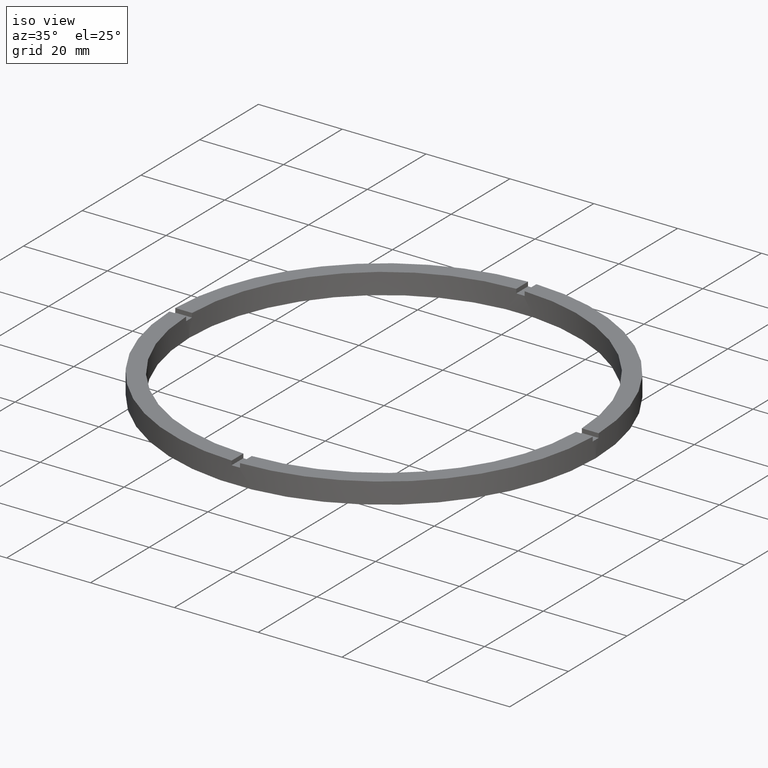
[diagram: clean part render]
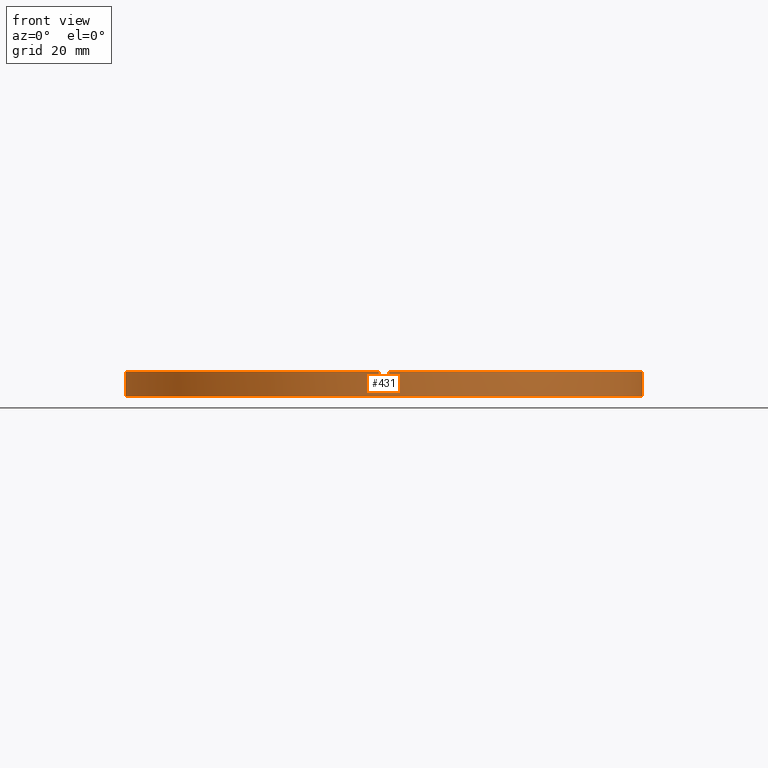
[diagram: tour spotlight — one face highlighted and labeled with its STEP entity id]
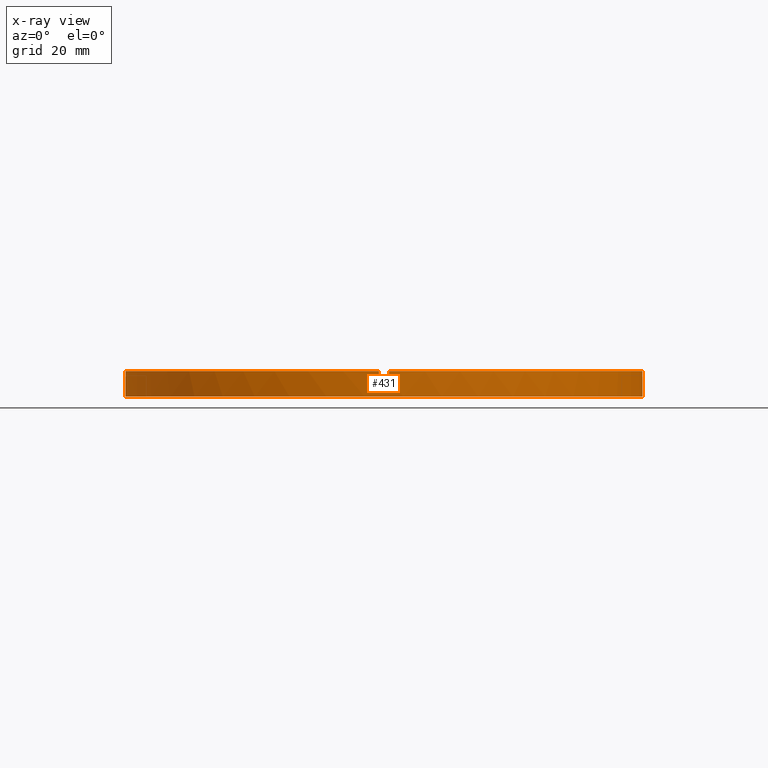
[diagram: x-ray of the same camera — body ghosted, this tour face saturated]
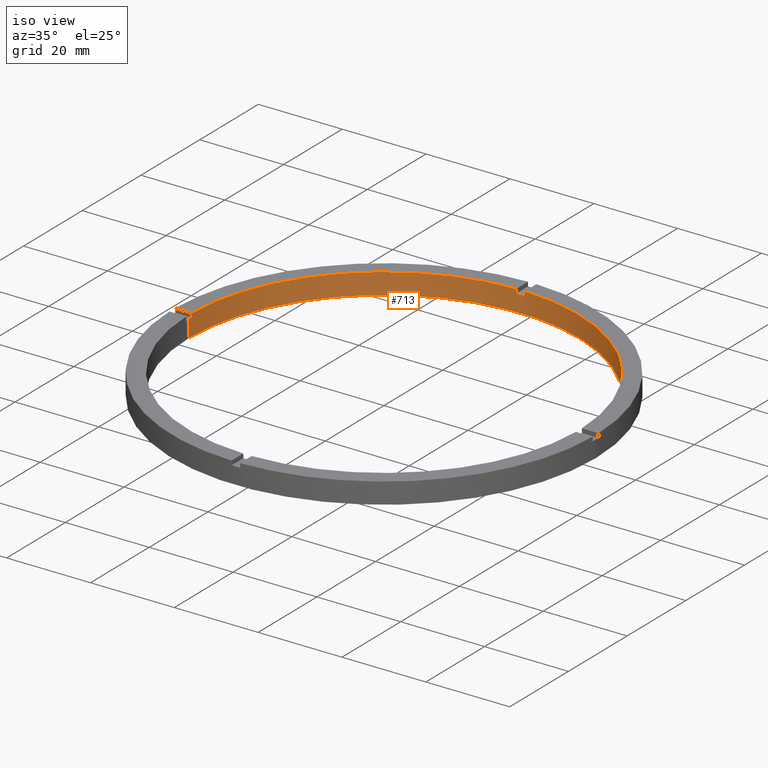
[diagram: tour spotlight — one face highlighted and labeled with its STEP entity id]
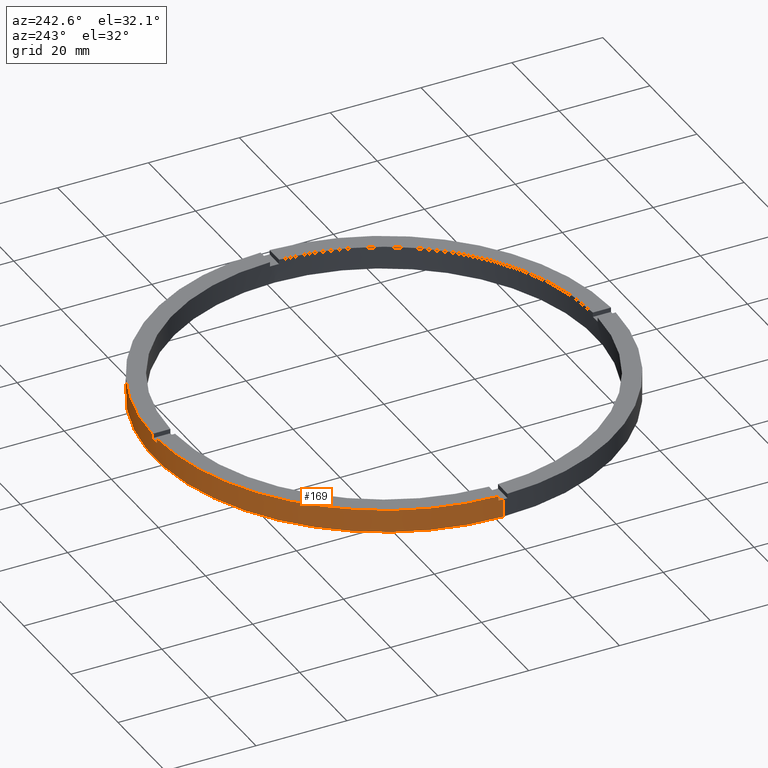
[diagram: tour spotlight — one face highlighted and labeled with its STEP entity id]
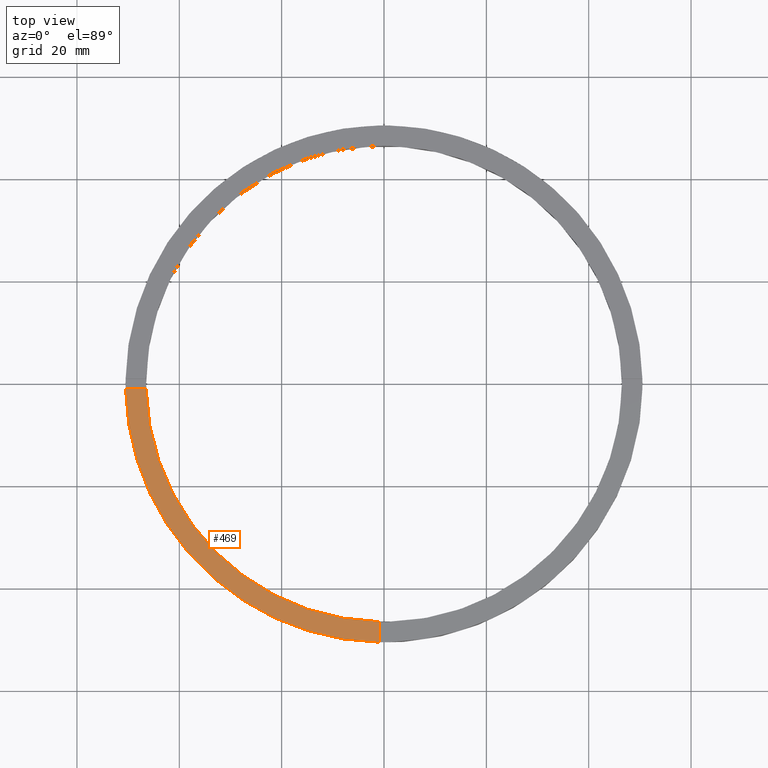
[diagram: tour spotlight — one face highlighted and labeled with its STEP entity id]
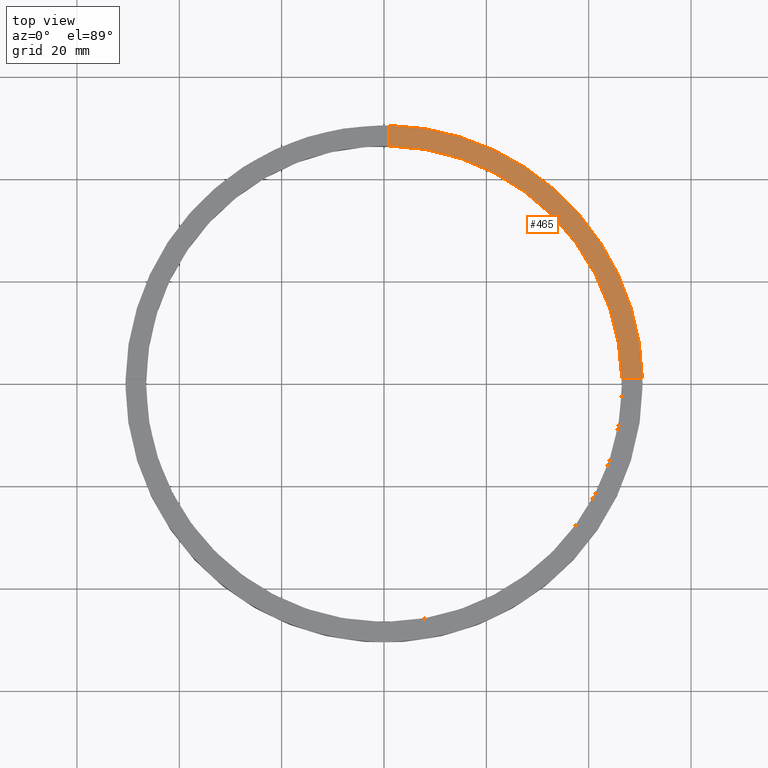
[diagram: tour spotlight — one face highlighted and labeled with its STEP entity id]
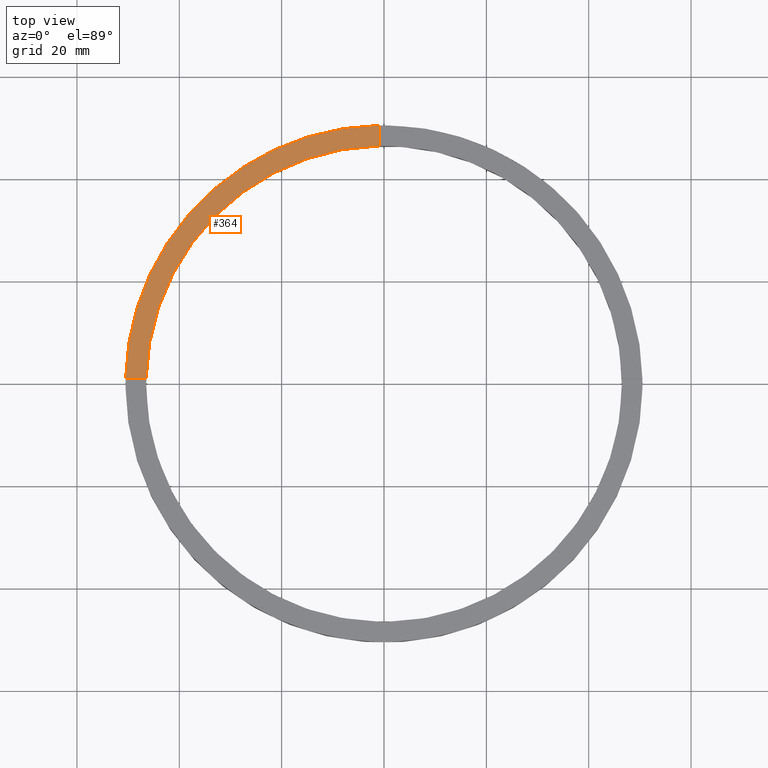
[diagram: tour spotlight — one face highlighted and labeled with its STEP entity id]
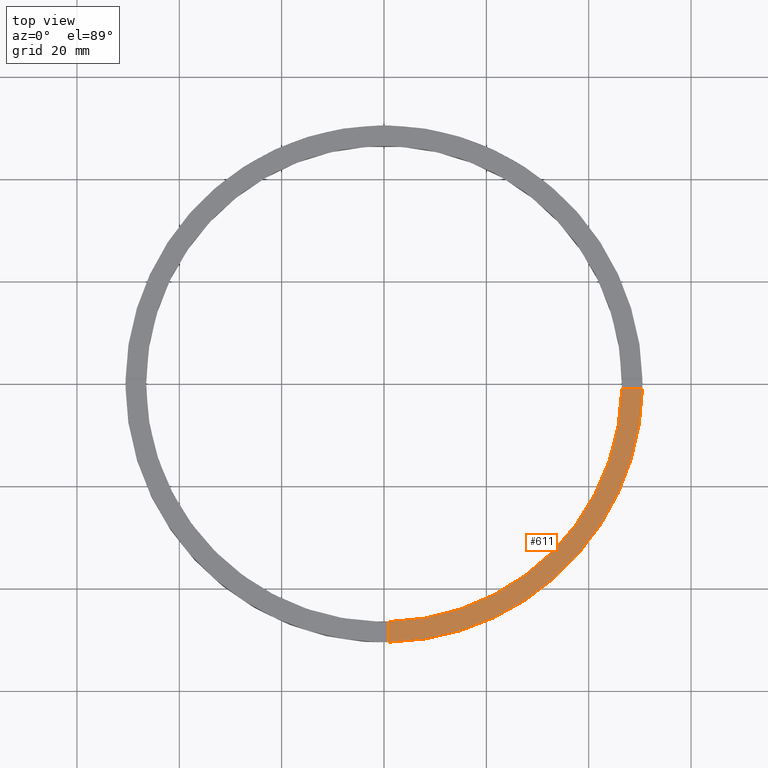
[diagram: tour spotlight — one face highlighted and labeled with its STEP entity id]
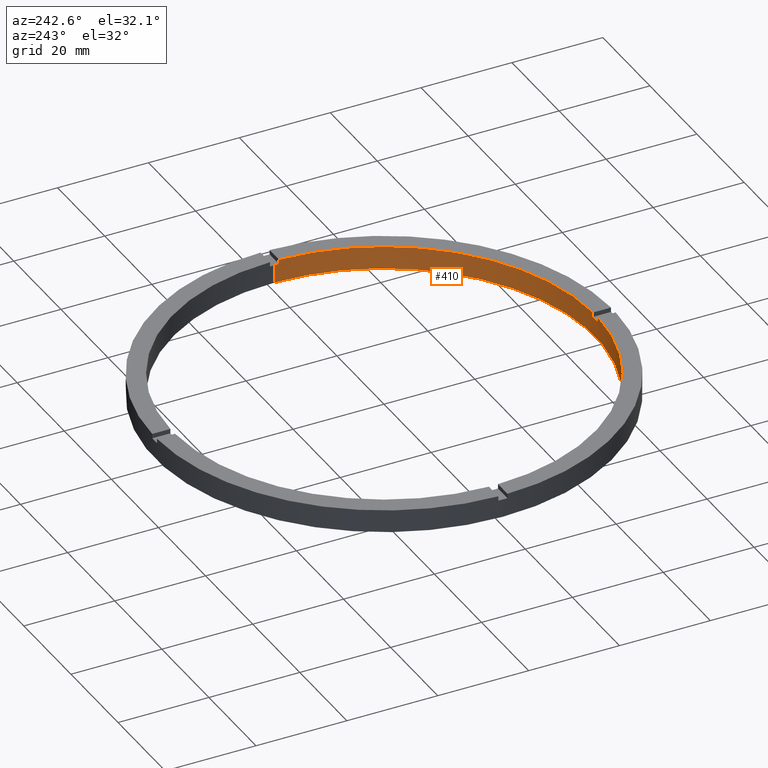
[diagram: tour spotlight — one face highlighted and labeled with its STEP entity id]
A machine part: a face-by-face anatomy tour. The part has 21 B-rep faces; the first image is the clean iso view, then the 8 largest visible faces are spotlighted one at a time (largest first), each with its STEP entity span.

Face 1 — front view, entity #431. An x-ray twin of the same camera follows (body ghosted, this face saturated) — the face is partly hidden behind the body. In plain terms, the highlighted cylindrical surface (partial cylindrical patch) has radius 50.5 mm, axis along (-0, -0, -1).
Definition (entity closure, byte-faithful):
#4 = LINE ( 'NONE', #651, #780 ) ;
#25 = DIRECTION ( 'NONE',  ( 1.000000000000000000, 0.000000000000000000, 0.000000000000000000 ) ) ;
#42 = EDGE_CURVE ( 'NONE', #171, #729, #245, .T. ) ;
#43 = EDGE_CURVE ( 'NONE', #165, #372, #262, .T. ) ;
#49 = DIRECTION ( 'NONE',  ( 0.000000000000000000, 0.000000000000000000, 1.000000000000000000 ) ) ;
#54 = CYLINDRICAL_SURFACE ( 'NONE', #470, 50.50000000000000000 ) ;
#55 = CARTESIAN_POINT ( 'NONE',  ( 50.49009803912050387, -1.000000000000154987, 5.000000000000000000 ) ) ;
#57 = DIRECTION ( 'NONE',  ( 0.000000000000000000, 0.000000000000000000, 1.000000000000000000 ) ) ;
#60 = VECTOR ( 'NONE', #481, 1000.000000000000000 ) ;
#66 = VECTOR ( 'NONE', #446, 1000.000000000000000 ) ;
#70 = ORIENTED_EDGE ( 'NONE', *, *, #707, .T. ) ;
#77 = LINE ( 'NONE', #424, #60 ) ;
#78 = ORIENTED_EDGE ( 'NONE', *, *, #475, .F. ) ;
#92 = VERTEX_POINT ( 'NONE', #608 ) ;
#105 = EDGE_CURVE ( 'NONE', #116, #403, #508, .T. ) ;
#114 = CARTESIAN_POINT ( 'NONE',  ( 50.49009803912050387, -1.000000000000154987, 4.000000000000000000 ) ) ;
#116 = VERTEX_POINT ( 'NONE', #220 ) ;
#118 = EDGE_CURVE ( 'NONE', #175, #372, #4, .T. ) ;
#125 = DIRECTION ( 'NONE',  ( -1.000000000000000000, 0.000000000000000000, 0.000000000000000000 ) ) ;
#141 = VERTEX_POINT ( 'NONE', #215 ) ;
#151 = ORIENTED_EDGE ( 'NONE', *, *, #43, .F. ) ;
#157 = CARTESIAN_POINT ( 'NONE',  ( -50.50000000000000000, 0.000000000000000000, 4.000000000000000000 ) ) ;
#165 = VERTEX_POINT ( 'NONE', #709 ) ;
#166 = DIRECTION ( 'NONE',  ( 0.000000000000000000, 0.000000000000000000, 1.000000000000000000 ) ) ;
#168 = AXIS2_PLACEMENT_3D ( 'NONE', #696, #166, #740 ) ;
#171 = VERTEX_POINT ( 'NONE', #157 ) ;
#175 = VERTEX_POINT ( 'NONE', #114 ) ;
#187 = CARTESIAN_POINT ( 'NONE',  ( 0.000000000000000000, 0.000000000000000000, 0.000000000000000000 ) ) ;
#189 = DIRECTION ( 'NONE',  ( -0.000000000000000000, -0.000000000000000000, -1.000000000000000000 ) ) ;
#201 = EDGE_CURVE ( 'NONE', #116, #141, #502, .T. ) ;
#207 = CARTESIAN_POINT ( 'NONE',  ( 0.000000000000000000, 0.000000000000000000, 4.000000000000000000 ) ) ;
#209 = EDGE_CURVE ( 'NONE', #171, #426, #772, .T. ) ;
#211 = CARTESIAN_POINT ( 'NONE',  ( -1.000000000000156541, -50.49009803912050387, 5.000000000000000000 ) ) ;
#215 = CARTESIAN_POINT ( 'NONE',  ( -1.000000000000156541, -50.49009803912050387, 5.000000000000000000 ) ) ;
#220 = CARTESIAN_POINT ( 'NONE',  ( -1.000000000000156541, -50.49009803912050387, 4.000000000000000000 ) ) ;
#224 = CARTESIAN_POINT ( 'NONE',  ( 0.000000000000000000, 0.000000000000000000, 4.000000000000000000 ) ) ;
#240 = AXIS2_PLACEMENT_3D ( 'NONE', #187, #57, #597 ) ;
#242 = DIRECTION ( 'NONE',  ( 0.000000000000000000, 0.000000000000000000, 1.000000000000000000 ) ) ;
#245 = LINE ( 'NONE', #734, #527 ) ;
#247 = AXIS2_PLACEMENT_3D ( 'NONE', #270, #49, #25 ) ;
#258 = ORIENTED_EDGE ( 'NONE', *, *, #201, .T. ) ;
#262 = CIRCLE ( 'NONE', #247, 50.50000000000000000 ) ;
#266 = DIRECTION ( 'NONE',  ( -0.000000000000000000, -0.000000000000000000, -1.000000000000000000 ) ) ;
#267 = VERTEX_POINT ( 'NONE', #382 ) ;
#270 = CARTESIAN_POINT ( 'NONE',  ( 0.000000000000000000, 0.000000000000000000, 5.000000000000000000 ) ) ;
#279 = DIRECTION ( 'NONE',  ( 1.000000000000000000, 0.000000000000000000, 0.000000000000000000 ) ) ;
#285 = CARTESIAN_POINT ( 'NONE',  ( 0.000000000000000000, 0.000000000000000000, 5.000000000000000000 ) ) ;
#302 = CARTESIAN_POINT ( 'NONE',  ( 0.9999999999998434586, -50.49009803912051098, 4.000000000000000000 ) ) ;
#315 = CIRCLE ( 'NONE', #417, 50.50000000000000000 ) ;
#318 = VECTOR ( 'NONE', #756, 1000.000000000000000 ) ;
#323 = DIRECTION ( 'NONE',  ( 1.000000000000000000, 0.000000000000000000, 0.000000000000000000 ) ) ;
#327 = ORIENTED_EDGE ( 'NONE', *, *, #118, .T. ) ;
#340 = LINE ( 'NONE', #384, #66 ) ;
#343 = EDGE_CURVE ( 'NONE', #466, #141, #782, .T. ) ;
#354 = DIRECTION ( 'NONE',  ( -0.000000000000000000, 0.000000000000000000, 1.000000000000000000 ) ) ;
#356 = ORIENTED_EDGE ( 'NONE', *, *, #42, .T. ) ;
#367 = ORIENTED_EDGE ( 'NONE', *, *, #209, .F. ) ;
#372 = VERTEX_POINT ( 'NONE', #55 ) ;
#374 = ORIENTED_EDGE ( 'NONE', *, *, #538, .T. ) ;
#382 = CARTESIAN_POINT ( 'NONE',  ( 50.50000000000000000, 6.184466335694133659E-15, 0.000000000000000000 ) ) ;
#384 = CARTESIAN_POINT ( 'NONE',  ( 50.50000000000000000, 6.184466335694133659E-15, 5.000000000000000000 ) ) ;
#402 = CARTESIAN_POINT ( 'NONE',  ( 0.000000000000000000, 0.000000000000000000, 5.000000000000000000 ) ) ;
#403 = VERTEX_POINT ( 'NONE', #302 ) ;
#404 = ORIENTED_EDGE ( 'NONE', *, *, #706, .T. ) ;
#411 = ORIENTED_EDGE ( 'NONE', *, *, #708, .F. ) ;
#417 = AXIS2_PLACEMENT_3D ( 'NONE', #207, #647, #697 ) ;
#423 = DIRECTION ( 'NONE',  ( 0.000000000000000000, 0.000000000000000000, 1.000000000000000000 ) ) ;
#424 = CARTESIAN_POINT ( 'NONE',  ( 0.9999999999998434586, -50.49009803912051098, 5.000000000000000000 ) ) ;
#426 = VERTEX_POINT ( 'NONE', #542 ) ;
#429 = ORIENTED_EDGE ( 'NONE', *, *, #105, .F. ) ;
#431 = ADVANCED_FACE ( 'NONE', ( #575 ), #54, .T. ) ;
#446 = DIRECTION ( 'NONE',  ( -0.000000000000000000, -0.000000000000000000, -1.000000000000000000 ) ) ;
#466 = VERTEX_POINT ( 'NONE', #753 ) ;
#470 = AXIS2_PLACEMENT_3D ( 'NONE', #285, #189, #125 ) ;
#475 = EDGE_CURVE ( 'NONE', #175, #92, #315, .T. ) ;
#481 = DIRECTION ( 'NONE',  ( -0.000000000000000000, -0.000000000000000000, -1.000000000000000000 ) ) ;
#502 = LINE ( 'NONE', #211, #776 ) ;
#508 = CIRCLE ( 'NONE', #733, 50.50000000000000000 ) ;
#520 = CARTESIAN_POINT ( 'NONE',  ( -50.49009803912050387, -1.000000000000031752, 5.000000000000000000 ) ) ;
#527 = VECTOR ( 'NONE', #266, 1000.000000000000000 ) ;
#538 = EDGE_CURVE ( 'NONE', #729, #267, #548, .T. ) ;
#542 = CARTESIAN_POINT ( 'NONE',  ( -50.49009803912050387, -1.000000000000031752, 4.000000000000000000 ) ) ;
#548 = CIRCLE ( 'NONE', #240, 50.50000000000000000 ) ;
#575 = FACE_OUTER_BOUND ( 'NONE', #703, .T. ) ;
#597 = DIRECTION ( 'NONE',  ( 1.000000000000000000, 0.000000000000000000, 0.000000000000000000 ) ) ;
#606 = LINE ( 'NONE', #520, #318 ) ;
#608 = CARTESIAN_POINT ( 'NONE',  ( 50.50000000000000000, 6.184466335694133659E-15, 4.000000000000000000 ) ) ;
#614 = ORIENTED_EDGE ( 'NONE', *, *, #343, .F. ) ;
#647 = DIRECTION ( 'NONE',  ( 0.000000000000000000, 0.000000000000000000, 1.000000000000000000 ) ) ;
#649 = DIRECTION ( 'NONE',  ( 0.000000000000000000, 0.000000000000000000, 1.000000000000000000 ) ) ;
#651 = CARTESIAN_POINT ( 'NONE',  ( 50.49009803912050387, -1.000000000000154987, 5.000000000000000000 ) ) ;
#696 = CARTESIAN_POINT ( 'NONE',  ( 0.000000000000000000, 0.000000000000000000, 4.000000000000000000 ) ) ;
#697 = DIRECTION ( 'NONE',  ( 1.000000000000000000, 0.000000000000000000, 0.000000000000000000 ) ) ;
#703 = EDGE_LOOP ( 'NONE', ( #411, #78, #327, #151, #70, #429, #258, #614, #404, #367, #356, #374 ) ) ;
#706 = EDGE_CURVE ( 'NONE', #466, #426, #606, .T. ) ;
#707 = EDGE_CURVE ( 'NONE', #165, #403, #77, .T. ) ;
#708 = EDGE_CURVE ( 'NONE', #92, #267, #340, .T. ) ;
#709 = CARTESIAN_POINT ( 'NONE',  ( 0.9999999999998434586, -50.49009803912051098, 5.000000000000000000 ) ) ;
#729 = VERTEX_POINT ( 'NONE', #771 ) ;
#733 = AXIS2_PLACEMENT_3D ( 'NONE', #224, #354, #279 ) ;
#734 = CARTESIAN_POINT ( 'NONE',  ( -50.50000000000000000, 0.000000000000000000, 5.000000000000000000 ) ) ;
#740 = DIRECTION ( 'NONE',  ( 1.000000000000000000, 0.000000000000000000, 0.000000000000000000 ) ) ;
#745 = AXIS2_PLACEMENT_3D ( 'NONE', #402, #242, #323 ) ;
#753 = CARTESIAN_POINT ( 'NONE',  ( -50.49009803912050387, -1.000000000000031752, 5.000000000000000000 ) ) ;
#756 = DIRECTION ( 'NONE',  ( -0.000000000000000000, -0.000000000000000000, -1.000000000000000000 ) ) ;
#771 = CARTESIAN_POINT ( 'NONE',  ( -50.50000000000000000, 0.000000000000000000, 0.000000000000000000 ) ) ;
#772 = CIRCLE ( 'NONE', #168, 50.50000000000000000 ) ;
#776 = VECTOR ( 'NONE', #649, 1000.000000000000000 ) ;
#780 = VECTOR ( 'NONE', #423, 1000.000000000000000 ) ;
#782 = CIRCLE ( 'NONE', #745, 50.50000000000000000 ) ;

Face 2 — iso view, entity #713. In plain terms, the highlighted cylindrical surface (partial cylindrical patch) has radius 46.5 mm, axis along (-0, -0, -1).
Definition (entity closure, byte-faithful):
#2 = CARTESIAN_POINT ( 'NONE',  ( 0.000000000000000000, 0.000000000000000000, 5.000000000000000000 ) ) ;
#10 = CARTESIAN_POINT ( 'NONE',  ( -46.48924606831132422, 0.9999999999999690248, 4.000000000000000000 ) ) ;
#19 = LINE ( 'NONE', #37, #286 ) ;
#24 = VECTOR ( 'NONE', #93, 1000.000000000000000 ) ;
#29 = LINE ( 'NONE', #674, #56 ) ;
#36 = DIRECTION ( 'NONE',  ( 0.000000000000000000, 0.000000000000000000, 1.000000000000000000 ) ) ;
#37 = CARTESIAN_POINT ( 'NONE',  ( 46.48924606831132422, 0.9999999999998447908, 5.000000000000000000 ) ) ;
#50 = CARTESIAN_POINT ( 'NONE',  ( -46.50000000000000000, 0.000000000000000000, 4.000000000000000000 ) ) ;
#51 = CIRCLE ( 'NONE', #98, 46.50000000000000000 ) ;
#56 = VECTOR ( 'NONE', #624, 1000.000000000000000 ) ;
#64 = FACE_OUTER_BOUND ( 'NONE', #590, .T. ) ;
#71 = DIRECTION ( 'NONE',  ( 0.000000000000000000, 0.000000000000000000, 1.000000000000000000 ) ) ;
#87 = AXIS2_PLACEMENT_3D ( 'NONE', #486, #71, #308 ) ;
#93 = DIRECTION ( 'NONE',  ( -0.000000000000000000, -0.000000000000000000, -1.000000000000000000 ) ) ;
#98 = AXIS2_PLACEMENT_3D ( 'NONE', #2, #726, #457 ) ;
#106 = VERTEX_POINT ( 'NONE', #594 ) ;
#107 = ORIENTED_EDGE ( 'NONE', *, *, #250, .F. ) ;
#110 = EDGE_CURVE ( 'NONE', #158, #690, #516, .T. ) ;
#111 = ORIENTED_EDGE ( 'NONE', *, *, #595, .F. ) ;
#122 = CARTESIAN_POINT ( 'NONE',  ( 46.50000000000000000, 5.694607616035192278E-15, 0.000000000000000000 ) ) ;
#128 = CARTESIAN_POINT ( 'NONE',  ( 0.000000000000000000, 0.000000000000000000, 4.000000000000000000 ) ) ;
#134 = EDGE_CURVE ( 'NONE', #158, #623, #777, .T. ) ;
#139 = VERTEX_POINT ( 'NONE', #711 ) ;
#145 = DIRECTION ( 'NONE',  ( 0.000000000000000000, 0.000000000000000000, 1.000000000000000000 ) ) ;
#148 = ORIENTED_EDGE ( 'NONE', *, *, #497, .T. ) ;
#149 = ORIENTED_EDGE ( 'NONE', *, *, #482, .F. ) ;
#158 = VERTEX_POINT ( 'NONE', #714 ) ;
#183 = DIRECTION ( 'NONE',  ( 1.000000000000000000, 0.000000000000000000, 0.000000000000000000 ) ) ;
#186 = CARTESIAN_POINT ( 'NONE',  ( 0.000000000000000000, 0.000000000000000000, 4.000000000000000000 ) ) ;
#193 = DIRECTION ( 'NONE',  ( 1.000000000000000000, 0.000000000000000000, 0.000000000000000000 ) ) ;
#205 = CARTESIAN_POINT ( 'NONE',  ( -1.000000000000026867, 46.48924606831132422, 5.000000000000000000 ) ) ;
#225 = DIRECTION ( 'NONE',  ( 1.000000000000000000, 0.000000000000000000, 0.000000000000000000 ) ) ;
#237 = CARTESIAN_POINT ( 'NONE',  ( 0.9999999999999731326, 46.48924606831132422, 4.000000000000000000 ) ) ;
#239 = AXIS2_PLACEMENT_3D ( 'NONE', #584, #36, #718 ) ;
#250 = EDGE_CURVE ( 'NONE', #623, #405, #255, .T. ) ;
#255 = CIRCLE ( 'NONE', #528, 46.50000000000000000 ) ;
#260 = VERTEX_POINT ( 'NONE', #237 ) ;
#277 = EDGE_CURVE ( 'NONE', #260, #668, #762, .T. ) ;
#286 = VECTOR ( 'NONE', #719, 1000.000000000000000 ) ;
#289 = CARTESIAN_POINT ( 'NONE',  ( 0.000000000000000000, 0.000000000000000000, 0.000000000000000000 ) ) ;
#290 = CIRCLE ( 'NONE', #699, 46.50000000000000000 ) ;
#292 = CIRCLE ( 'NONE', #328, 46.50000000000000000 ) ;
#308 = DIRECTION ( 'NONE',  ( 1.000000000000000000, 0.000000000000000000, 0.000000000000000000 ) ) ;
#319 = CARTESIAN_POINT ( 'NONE',  ( -46.50000000000000000, 0.000000000000000000, 5.000000000000000000 ) ) ;
#322 = CIRCLE ( 'NONE', #87, 46.50000000000000000 ) ;
#328 = AXIS2_PLACEMENT_3D ( 'NONE', #128, #381, #225 ) ;
#332 = ORIENTED_EDGE ( 'NONE', *, *, #474, .T. ) ;
#334 = AXIS2_PLACEMENT_3D ( 'NONE', #484, #536, #630 ) ;
#336 = VERTEX_POINT ( 'NONE', #10 ) ;
#361 = CARTESIAN_POINT ( 'NONE',  ( 46.48924606831132422, 0.9999999999998447908, 4.000000000000000000 ) ) ;
#363 = EDGE_CURVE ( 'NONE', #260, #660, #290, .T. ) ;
#370 = ORIENTED_EDGE ( 'NONE', *, *, #663, .F. ) ;
#375 = CARTESIAN_POINT ( 'NONE',  ( 46.50000000000000000, 5.694607616035192278E-15, 5.000000000000000000 ) ) ;
#376 = CARTESIAN_POINT ( 'NONE',  ( 0.9999999999999731326, 46.48924606831132422, 5.000000000000000000 ) ) ;
#379 = ORIENTED_EDGE ( 'NONE', *, *, #363, .T. ) ;
#381 = DIRECTION ( 'NONE',  ( 0.000000000000000000, 0.000000000000000000, 1.000000000000000000 ) ) ;
#405 = VERTEX_POINT ( 'NONE', #526 ) ;
#439 = CARTESIAN_POINT ( 'NONE',  ( -1.000000000000026867, 46.48924606831132422, 5.000000000000000000 ) ) ;
#457 = DIRECTION ( 'NONE',  ( 1.000000000000000000, 0.000000000000000000, 0.000000000000000000 ) ) ;
#473 = CARTESIAN_POINT ( 'NONE',  ( -1.000000000000026867, 46.48924606831132422, 4.000000000000000000 ) ) ;
#474 = EDGE_CURVE ( 'NONE', #675, #405, #562, .T. ) ;
#482 = EDGE_CURVE ( 'NONE', #619, #660, #564, .T. ) ;
#484 = CARTESIAN_POINT ( 'NONE',  ( 0.000000000000000000, 0.000000000000000000, 5.000000000000000000 ) ) ;
#486 = CARTESIAN_POINT ( 'NONE',  ( 0.000000000000000000, 0.000000000000000000, 5.000000000000000000 ) ) ;
#487 = DIRECTION ( 'NONE',  ( 0.000000000000000000, -0.000000000000000000, 1.000000000000000000 ) ) ;
#493 = DIRECTION ( 'NONE',  ( 0.000000000000000000, 0.000000000000000000, 1.000000000000000000 ) ) ;
#497 = EDGE_CURVE ( 'NONE', #139, #668, #51, .T. ) ;
#506 = VECTOR ( 'NONE', #493, 1000.000000000000000 ) ;
#511 = VECTOR ( 'NONE', #754, 1000.000000000000000 ) ;
#516 = CIRCLE ( 'NONE', #239, 46.50000000000000000 ) ;
#525 = CARTESIAN_POINT ( 'NONE',  ( 0.9999999999999731326, 46.48924606831132422, 5.000000000000000000 ) ) ;
#526 = CARTESIAN_POINT ( 'NONE',  ( -46.50000000000000000, 0.000000000000000000, 0.000000000000000000 ) ) ;
#528 = AXIS2_PLACEMENT_3D ( 'NONE', #289, #145, #193 ) ;
#536 = DIRECTION ( 'NONE',  ( -0.000000000000000000, -0.000000000000000000, -1.000000000000000000 ) ) ;
#547 = VECTOR ( 'NONE', #742, 1000.000000000000000 ) ;
#562 = LINE ( 'NONE', #319, #24 ) ;
#564 = LINE ( 'NONE', #205, #547 ) ;
#579 = CYLINDRICAL_SURFACE ( 'NONE', #334, 46.50000000000000000 ) ;
#584 = CARTESIAN_POINT ( 'NONE',  ( 0.000000000000000000, 0.000000000000000000, 4.000000000000000000 ) ) ;
#590 = EDGE_LOOP ( 'NONE', ( #637, #616, #111, #148, #676, #379, #149, #596, #370, #628, #332, #107 ) ) ;
#594 = CARTESIAN_POINT ( 'NONE',  ( -46.48924606831132422, 0.9999999999999690248, 5.000000000000000000 ) ) ;
#595 = EDGE_CURVE ( 'NONE', #139, #690, #19, .T. ) ;
#596 = ORIENTED_EDGE ( 'NONE', *, *, #744, .T. ) ;
#616 = ORIENTED_EDGE ( 'NONE', *, *, #110, .T. ) ;
#619 = VERTEX_POINT ( 'NONE', #439 ) ;
#623 = VERTEX_POINT ( 'NONE', #122 ) ;
#624 = DIRECTION ( 'NONE',  ( 0.000000000000000000, 0.000000000000000000, 1.000000000000000000 ) ) ;
#628 = ORIENTED_EDGE ( 'NONE', *, *, #666, .T. ) ;
#630 = DIRECTION ( 'NONE',  ( -1.000000000000000000, 0.000000000000000000, 0.000000000000000000 ) ) ;
#637 = ORIENTED_EDGE ( 'NONE', *, *, #134, .F. ) ;
#660 = VERTEX_POINT ( 'NONE', #473 ) ;
#663 = EDGE_CURVE ( 'NONE', #336, #106, #29, .T. ) ;
#666 = EDGE_CURVE ( 'NONE', #336, #675, #292, .T. ) ;
#668 = VERTEX_POINT ( 'NONE', #376 ) ;
#674 = CARTESIAN_POINT ( 'NONE',  ( -46.48924606831132422, 0.9999999999999690248, 5.000000000000000000 ) ) ;
#675 = VERTEX_POINT ( 'NONE', #50 ) ;
#676 = ORIENTED_EDGE ( 'NONE', *, *, #277, .F. ) ;
#690 = VERTEX_POINT ( 'NONE', #361 ) ;
#699 = AXIS2_PLACEMENT_3D ( 'NONE', #186, #487, #183 ) ;
#711 = CARTESIAN_POINT ( 'NONE',  ( 46.48924606831132422, 0.9999999999998447908, 5.000000000000000000 ) ) ;
#713 = ADVANCED_FACE ( 'NONE', ( #64 ), #579, .F. ) ;
#714 = CARTESIAN_POINT ( 'NONE',  ( 46.50000000000000000, 5.694607616035192278E-15, 4.000000000000000000 ) ) ;
#718 = DIRECTION ( 'NONE',  ( 1.000000000000000000, 0.000000000000000000, 0.000000000000000000 ) ) ;
#719 = DIRECTION ( 'NONE',  ( -0.000000000000000000, -0.000000000000000000, -1.000000000000000000 ) ) ;
#726 = DIRECTION ( 'NONE',  ( 0.000000000000000000, 0.000000000000000000, 1.000000000000000000 ) ) ;
#742 = DIRECTION ( 'NONE',  ( -0.000000000000000000, -0.000000000000000000, -1.000000000000000000 ) ) ;
#744 = EDGE_CURVE ( 'NONE', #619, #106, #322, .T. ) ;
#754 = DIRECTION ( 'NONE',  ( -0.000000000000000000, -0.000000000000000000, -1.000000000000000000 ) ) ;
#762 = LINE ( 'NONE', #525, #506 ) ;
#777 = LINE ( 'NONE', #375, #511 ) ;

Face 3 — auxiliary view, entity #169. In plain terms, the highlighted cylindrical surface (partial cylindrical patch) has radius 50.5 mm, axis along (-0, -0, -1).
Definition (entity closure, byte-faithful):
#8 = ORIENTED_EDGE ( 'NONE', *, *, #428, .T. ) ;
#16 = LINE ( 'NONE', #444, #545 ) ;
#18 = CARTESIAN_POINT ( 'NONE',  ( 0.000000000000000000, 0.000000000000000000, 4.000000000000000000 ) ) ;
#22 = LINE ( 'NONE', #243, #274 ) ;
#38 = VECTOR ( 'NONE', #458, 1000.000000000000000 ) ;
#42 = EDGE_CURVE ( 'NONE', #171, #729, #245, .T. ) ;
#63 = DIRECTION ( 'NONE',  ( 1.000000000000000000, 0.000000000000000000, 0.000000000000000000 ) ) ;
#66 = VECTOR ( 'NONE', #446, 1000.000000000000000 ) ;
#67 = EDGE_CURVE ( 'NONE', #146, #170, #519, .T. ) ;
#68 = VECTOR ( 'NONE', #735, 1000.000000000000000 ) ;
#73 = DIRECTION ( 'NONE',  ( 0.000000000000000000, 0.000000000000000000, 1.000000000000000000 ) ) ;
#80 = ORIENTED_EDGE ( 'NONE', *, *, #393, .F. ) ;
#83 = ORIENTED_EDGE ( 'NONE', *, *, #427, .F. ) ;
#88 = ORIENTED_EDGE ( 'NONE', *, *, #173, .F. ) ;
#92 = VERTEX_POINT ( 'NONE', #608 ) ;
#96 = DIRECTION ( 'NONE',  ( 0.000000000000000000, 0.000000000000000000, 1.000000000000000000 ) ) ;
#109 = ORIENTED_EDGE ( 'NONE', *, *, #391, .T. ) ;
#133 = CARTESIAN_POINT ( 'NONE',  ( 0.9999999999999731326, 50.49009803912050387, 5.000000000000000000 ) ) ;
#135 = ORIENTED_EDGE ( 'NONE', *, *, #708, .T. ) ;
#146 = VERTEX_POINT ( 'NONE', #368 ) ;
#147 = DIRECTION ( 'NONE',  ( 1.000000000000000000, 0.000000000000000000, 0.000000000000000000 ) ) ;
#150 = CARTESIAN_POINT ( 'NONE',  ( -50.49009803912050387, 0.9999999999999683586, 5.000000000000000000 ) ) ;
#153 = DIRECTION ( 'NONE',  ( -0.000000000000000000, -0.000000000000000000, -1.000000000000000000 ) ) ;
#157 = CARTESIAN_POINT ( 'NONE',  ( -50.50000000000000000, 0.000000000000000000, 4.000000000000000000 ) ) ;
#167 = AXIS2_PLACEMENT_3D ( 'NONE', #500, #432, #512 ) ;
#169 = ADVANCED_FACE ( 'NONE', ( #251 ), #533, .T. ) ;
#170 = VERTEX_POINT ( 'NONE', #150 ) ;
#171 = VERTEX_POINT ( 'NONE', #157 ) ;
#173 = EDGE_CURVE ( 'NONE', #653, #171, #537, .T. ) ;
#180 = CARTESIAN_POINT ( 'NONE',  ( 50.49009803912051098, 0.9999999999998450129, 4.000000000000000000 ) ) ;
#199 = AXIS2_PLACEMENT_3D ( 'NONE', #678, #73, #147 ) ;
#208 = VERTEX_POINT ( 'NONE', #212 ) ;
#212 = CARTESIAN_POINT ( 'NONE',  ( 50.49009803912051098, 0.9999999999998450129, 5.000000000000000000 ) ) ;
#216 = CARTESIAN_POINT ( 'NONE',  ( 0.000000000000000000, 0.000000000000000000, 5.000000000000000000 ) ) ;
#221 = CARTESIAN_POINT ( 'NONE',  ( 0.9999999999999731326, 50.49009803912050387, 4.000000000000000000 ) ) ;
#241 = DIRECTION ( 'NONE',  ( 1.000000000000000000, 0.000000000000000000, 0.000000000000000000 ) ) ;
#243 = CARTESIAN_POINT ( 'NONE',  ( -1.000000000000026867, 50.49009803912050387, 5.000000000000000000 ) ) ;
#245 = LINE ( 'NONE', #734, #527 ) ;
#251 = FACE_OUTER_BOUND ( 'NONE', #442, .T. ) ;
#263 = DIRECTION ( 'NONE',  ( 0.000000000000000000, 0.000000000000000000, 1.000000000000000000 ) ) ;
#265 = ORIENTED_EDGE ( 'NONE', *, *, #67, .F. ) ;
#266 = DIRECTION ( 'NONE',  ( -0.000000000000000000, -0.000000000000000000, -1.000000000000000000 ) ) ;
#267 = VERTEX_POINT ( 'NONE', #382 ) ;
#274 = VECTOR ( 'NONE', #153, 1000.000000000000000 ) ;
#275 = CIRCLE ( 'NONE', #723, 50.50000000000000000 ) ;
#282 = AXIS2_PLACEMENT_3D ( 'NONE', #18, #96, #241 ) ;
#284 = LINE ( 'NONE', #396, #38 ) ;
#310 = DIRECTION ( 'NONE',  ( 0.000000000000000000, 0.000000000000000000, 1.000000000000000000 ) ) ;
#324 = CIRCLE ( 'NONE', #572, 50.50000000000000000 ) ;
#340 = LINE ( 'NONE', #384, #66 ) ;
#358 = DIRECTION ( 'NONE',  ( 1.000000000000000000, 0.000000000000000000, 0.000000000000000000 ) ) ;
#368 = CARTESIAN_POINT ( 'NONE',  ( -1.000000000000026867, 50.49009803912050387, 5.000000000000000000 ) ) ;
#382 = CARTESIAN_POINT ( 'NONE',  ( 50.50000000000000000, 6.184466335694133659E-15, 0.000000000000000000 ) ) ;
#383 = CARTESIAN_POINT ( 'NONE',  ( -1.000000000000026867, 50.49009803912050387, 4.000000000000000000 ) ) ;
#384 = CARTESIAN_POINT ( 'NONE',  ( 50.50000000000000000, 6.184466335694133659E-15, 5.000000000000000000 ) ) ;
#391 = EDGE_CURVE ( 'NONE', #653, #170, #16, .T. ) ;
#392 = CARTESIAN_POINT ( 'NONE',  ( 50.49009803912051098, 0.9999999999998450129, 5.000000000000000000 ) ) ;
#393 = EDGE_CURVE ( 'NONE', #208, #642, #574, .T. ) ;
#394 = DIRECTION ( 'NONE',  ( 1.000000000000000000, 0.000000000000000000, 0.000000000000000000 ) ) ;
#396 = CARTESIAN_POINT ( 'NONE',  ( 0.9999999999999731326, 50.49009803912050387, 5.000000000000000000 ) ) ;
#418 = VERTEX_POINT ( 'NONE', #383 ) ;
#422 = ORIENTED_EDGE ( 'NONE', *, *, #746, .T. ) ;
#427 = EDGE_CURVE ( 'NONE', #658, #418, #561, .T. ) ;
#428 = EDGE_CURVE ( 'NONE', #267, #729, #275, .T. ) ;
#432 = DIRECTION ( 'NONE',  ( 0.000000000000000000, 0.000000000000000000, 1.000000000000000000 ) ) ;
#435 = DIRECTION ( 'NONE',  ( 0.000000000000000000, -0.000000000000000000, 1.000000000000000000 ) ) ;
#442 = EDGE_LOOP ( 'NONE', ( #535, #135, #8, #665, #88, #109, #265, #662, #83, #539, #80, #422 ) ) ;
#444 = CARTESIAN_POINT ( 'NONE',  ( -50.49009803912050387, 0.9999999999999683586, 5.000000000000000000 ) ) ;
#446 = DIRECTION ( 'NONE',  ( -0.000000000000000000, -0.000000000000000000, -1.000000000000000000 ) ) ;
#458 = DIRECTION ( 'NONE',  ( 0.000000000000000000, 0.000000000000000000, 1.000000000000000000 ) ) ;
#462 = DIRECTION ( 'NONE',  ( -1.000000000000000000, 0.000000000000000000, 0.000000000000000000 ) ) ;
#467 = CARTESIAN_POINT ( 'NONE',  ( 0.000000000000000000, 0.000000000000000000, 4.000000000000000000 ) ) ;
#468 = CARTESIAN_POINT ( 'NONE',  ( -50.49009803912050387, 0.9999999999999683586, 4.000000000000000000 ) ) ;
#478 = EDGE_CURVE ( 'NONE', #146, #418, #22, .T. ) ;
#480 = CARTESIAN_POINT ( 'NONE',  ( 0.000000000000000000, 0.000000000000000000, 4.000000000000000000 ) ) ;
#483 = CARTESIAN_POINT ( 'NONE',  ( 0.000000000000000000, 0.000000000000000000, 0.000000000000000000 ) ) ;
#485 = EDGE_CURVE ( 'NONE', #658, #642, #284, .T. ) ;
#500 = CARTESIAN_POINT ( 'NONE',  ( 0.000000000000000000, 0.000000000000000000, 5.000000000000000000 ) ) ;
#512 = DIRECTION ( 'NONE',  ( 1.000000000000000000, 0.000000000000000000, 0.000000000000000000 ) ) ;
#519 = CIRCLE ( 'NONE', #167, 50.50000000000000000 ) ;
#527 = VECTOR ( 'NONE', #266, 1000.000000000000000 ) ;
#533 = CYLINDRICAL_SURFACE ( 'NONE', #778, 50.50000000000000000 ) ;
#535 = ORIENTED_EDGE ( 'NONE', *, *, #779, .F. ) ;
#537 = CIRCLE ( 'NONE', #282, 50.50000000000000000 ) ;
#539 = ORIENTED_EDGE ( 'NONE', *, *, #485, .T. ) ;
#545 = VECTOR ( 'NONE', #550, 1000.000000000000000 ) ;
#550 = DIRECTION ( 'NONE',  ( 0.000000000000000000, 0.000000000000000000, 1.000000000000000000 ) ) ;
#561 = CIRCLE ( 'NONE', #670, 50.50000000000000000 ) ;
#572 = AXIS2_PLACEMENT_3D ( 'NONE', #467, #263, #358 ) ;
#574 = CIRCLE ( 'NONE', #199, 50.50000000000000000 ) ;
#583 = LINE ( 'NONE', #392, #68 ) ;
#608 = CARTESIAN_POINT ( 'NONE',  ( 50.50000000000000000, 6.184466335694133659E-15, 4.000000000000000000 ) ) ;
#640 = VERTEX_POINT ( 'NONE', #180 ) ;
#642 = VERTEX_POINT ( 'NONE', #133 ) ;
#653 = VERTEX_POINT ( 'NONE', #468 ) ;
#658 = VERTEX_POINT ( 'NONE', #221 ) ;
#662 = ORIENTED_EDGE ( 'NONE', *, *, #478, .T. ) ;
#665 = ORIENTED_EDGE ( 'NONE', *, *, #42, .F. ) ;
#670 = AXIS2_PLACEMENT_3D ( 'NONE', #480, #435, #63 ) ;
#678 = CARTESIAN_POINT ( 'NONE',  ( 0.000000000000000000, 0.000000000000000000, 5.000000000000000000 ) ) ;
#708 = EDGE_CURVE ( 'NONE', #92, #267, #340, .T. ) ;
#712 = DIRECTION ( 'NONE',  ( -0.000000000000000000, -0.000000000000000000, -1.000000000000000000 ) ) ;
#723 = AXIS2_PLACEMENT_3D ( 'NONE', #483, #310, #394 ) ;
#729 = VERTEX_POINT ( 'NONE', #771 ) ;
#734 = CARTESIAN_POINT ( 'NONE',  ( -50.50000000000000000, 0.000000000000000000, 5.000000000000000000 ) ) ;
#735 = DIRECTION ( 'NONE',  ( -0.000000000000000000, -0.000000000000000000, -1.000000000000000000 ) ) ;
#746 = EDGE_CURVE ( 'NONE', #208, #640, #583, .T. ) ;
#771 = CARTESIAN_POINT ( 'NONE',  ( -50.50000000000000000, 0.000000000000000000, 0.000000000000000000 ) ) ;
#778 = AXIS2_PLACEMENT_3D ( 'NONE', #216, #712, #462 ) ;
#779 = EDGE_CURVE ( 'NONE', #92, #640, #324, .T. ) ;

Face 4 — top view, entity #469. In plain terms, the highlighted planar face has unit normal (0, 0, 1).
Definition (entity closure, byte-faithful):
#40 = LINE ( 'NONE', #615, #552 ) ;
#97 = EDGE_LOOP ( 'NONE', ( #605, #346, #102, #425 ) ) ;
#100 = PLANE ( 'NONE',  #763 ) ;
#102 = ORIENTED_EDGE ( 'NONE', *, *, #350, .F. ) ;
#141 = VERTEX_POINT ( 'NONE', #215 ) ;
#160 = DIRECTION ( 'NONE',  ( 1.000000000000000000, 0.000000000000000000, -0.000000000000000000 ) ) ;
#176 = VERTEX_POINT ( 'NONE', #214 ) ;
#214 = CARTESIAN_POINT ( 'NONE',  ( -1.000000000000156986, -46.48924606831132422, 5.000000000000000000 ) ) ;
#215 = CARTESIAN_POINT ( 'NONE',  ( -1.000000000000156541, -50.49009803912050387, 5.000000000000000000 ) ) ;
#218 = AXIS2_PLACEMENT_3D ( 'NONE', #304, #235, #395 ) ;
#231 = DIRECTION ( 'NONE',  ( 1.301042606982605074E-16, -1.000000000000000000, 0.000000000000000000 ) ) ;
#235 = DIRECTION ( 'NONE',  ( 0.000000000000000000, 0.000000000000000000, 1.000000000000000000 ) ) ;
#238 = CARTESIAN_POINT ( 'NONE',  ( 0.000000000000000000, 0.000000000000000000, 5.000000000000000000 ) ) ;
#242 = DIRECTION ( 'NONE',  ( 0.000000000000000000, 0.000000000000000000, 1.000000000000000000 ) ) ;
#280 = FACE_OUTER_BOUND ( 'NONE', #97, .T. ) ;
#301 = CIRCLE ( 'NONE', #218, 46.50000000000000000 ) ;
#304 = CARTESIAN_POINT ( 'NONE',  ( 0.000000000000000000, 0.000000000000000000, 5.000000000000000000 ) ) ;
#309 = VECTOR ( 'NONE', #231, 1000.000000000000000 ) ;
#323 = DIRECTION ( 'NONE',  ( 1.000000000000000000, 0.000000000000000000, 0.000000000000000000 ) ) ;
#343 = EDGE_CURVE ( 'NONE', #466, #141, #782, .T. ) ;
#346 = ORIENTED_EDGE ( 'NONE', *, *, #499, .F. ) ;
#350 = EDGE_CURVE ( 'NONE', #466, #669, #40, .T. ) ;
#390 = EDGE_CURVE ( 'NONE', #176, #141, #566, .T. ) ;
#395 = DIRECTION ( 'NONE',  ( 1.000000000000000000, 0.000000000000000000, 0.000000000000000000 ) ) ;
#402 = CARTESIAN_POINT ( 'NONE',  ( 0.000000000000000000, 0.000000000000000000, 5.000000000000000000 ) ) ;
#425 = ORIENTED_EDGE ( 'NONE', *, *, #343, .T. ) ;
#466 = VERTEX_POINT ( 'NONE', #753 ) ;
#469 = ADVANCED_FACE ( 'NONE', ( #280 ), #100, .T. ) ;
#499 = EDGE_CURVE ( 'NONE', #669, #176, #301, .T. ) ;
#552 = VECTOR ( 'NONE', #672, 1000.000000000000000 ) ;
#557 = DIRECTION ( 'NONE',  ( 0.000000000000000000, 0.000000000000000000, 1.000000000000000000 ) ) ;
#566 = LINE ( 'NONE', #727, #309 ) ;
#605 = ORIENTED_EDGE ( 'NONE', *, *, #390, .F. ) ;
#610 = CARTESIAN_POINT ( 'NONE',  ( -46.48924606831132422, -1.000000000000031086, 5.000000000000000000 ) ) ;
#615 = CARTESIAN_POINT ( 'NONE',  ( -40.50000000000019185, -1.000000000000029754, 5.000000000000000000 ) ) ;
#669 = VERTEX_POINT ( 'NONE', #610 ) ;
#672 = DIRECTION ( 'NONE',  ( 1.000000000000000000, 1.951563910473907735E-16, -0.000000000000000000 ) ) ;
#727 = CARTESIAN_POINT ( 'NONE',  ( -1.000000000000157874, -40.50000000000018474, 5.000000000000000000 ) ) ;
#745 = AXIS2_PLACEMENT_3D ( 'NONE', #402, #242, #323 ) ;
#753 = CARTESIAN_POINT ( 'NONE',  ( -50.49009803912050387, -1.000000000000031752, 5.000000000000000000 ) ) ;
#763 = AXIS2_PLACEMENT_3D ( 'NONE', #238, #557, #160 ) ;
#782 = CIRCLE ( 'NONE', #745, 50.50000000000000000 ) ;

Face 5 — top view, entity #465. In plain terms, the highlighted planar face has unit normal (0, 0, 1).
Definition (entity closure, byte-faithful):
#2 = CARTESIAN_POINT ( 'NONE',  ( 0.000000000000000000, 0.000000000000000000, 5.000000000000000000 ) ) ;
#12 = VECTOR ( 'NONE', #236, 1000.000000000000000 ) ;
#13 = ORIENTED_EDGE ( 'NONE', *, *, #497, .F. ) ;
#17 = LINE ( 'NONE', #476, #568 ) ;
#51 = CIRCLE ( 'NONE', #98, 46.50000000000000000 ) ;
#73 = DIRECTION ( 'NONE',  ( 0.000000000000000000, 0.000000000000000000, 1.000000000000000000 ) ) ;
#98 = AXIS2_PLACEMENT_3D ( 'NONE', #2, #726, #457 ) ;
#133 = CARTESIAN_POINT ( 'NONE',  ( 0.9999999999999731326, 50.49009803912050387, 5.000000000000000000 ) ) ;
#139 = VERTEX_POINT ( 'NONE', #711 ) ;
#147 = DIRECTION ( 'NONE',  ( 1.000000000000000000, 0.000000000000000000, 0.000000000000000000 ) ) ;
#164 = ORIENTED_EDGE ( 'NONE', *, *, #393, .T. ) ;
#196 = EDGE_CURVE ( 'NONE', #208, #139, #543, .T. ) ;
#199 = AXIS2_PLACEMENT_3D ( 'NONE', #678, #73, #147 ) ;
#208 = VERTEX_POINT ( 'NONE', #212 ) ;
#212 = CARTESIAN_POINT ( 'NONE',  ( 50.49009803912051098, 0.9999999999998450129, 5.000000000000000000 ) ) ;
#236 = DIRECTION ( 'NONE',  ( -1.000000000000000000, -6.505213034913025371E-17, -0.000000000000000000 ) ) ;
#311 = FACE_OUTER_BOUND ( 'NONE', #515, .T. ) ;
#339 = ORIENTED_EDGE ( 'NONE', *, *, #196, .F. ) ;
#357 = EDGE_CURVE ( 'NONE', #668, #642, #17, .T. ) ;
#371 = ORIENTED_EDGE ( 'NONE', *, *, #357, .F. ) ;
#376 = CARTESIAN_POINT ( 'NONE',  ( 0.9999999999999731326, 46.48924606831132422, 5.000000000000000000 ) ) ;
#393 = EDGE_CURVE ( 'NONE', #208, #642, #574, .T. ) ;
#457 = DIRECTION ( 'NONE',  ( 1.000000000000000000, 0.000000000000000000, 0.000000000000000000 ) ) ;
#465 = ADVANCED_FACE ( 'NONE', ( #311 ), #643, .T. ) ;
#476 = CARTESIAN_POINT ( 'NONE',  ( 0.9999999999999731326, 40.50000000000000000, 5.000000000000000000 ) ) ;
#497 = EDGE_CURVE ( 'NONE', #139, #668, #51, .T. ) ;
#515 = EDGE_LOOP ( 'NONE', ( #371, #13, #339, #164 ) ) ;
#543 = LINE ( 'NONE', #553, #12 ) ;
#553 = CARTESIAN_POINT ( 'NONE',  ( 40.49999999999999289, 0.9999999999998443467, 5.000000000000000000 ) ) ;
#568 = VECTOR ( 'NONE', #721, 1000.000000000000000 ) ;
#574 = CIRCLE ( 'NONE', #199, 50.50000000000000000 ) ;
#581 = AXIS2_PLACEMENT_3D ( 'NONE', #687, #732, #694 ) ;
#642 = VERTEX_POINT ( 'NONE', #133 ) ;
#643 = PLANE ( 'NONE',  #581 ) ;
#668 = VERTEX_POINT ( 'NONE', #376 ) ;
#678 = CARTESIAN_POINT ( 'NONE',  ( 0.000000000000000000, 0.000000000000000000, 5.000000000000000000 ) ) ;
#687 = CARTESIAN_POINT ( 'NONE',  ( 0.000000000000000000, 0.000000000000000000, 5.000000000000000000 ) ) ;
#694 = DIRECTION ( 'NONE',  ( 1.000000000000000000, 0.000000000000000000, -0.000000000000000000 ) ) ;
#711 = CARTESIAN_POINT ( 'NONE',  ( 46.48924606831132422, 0.9999999999998447908, 5.000000000000000000 ) ) ;
#721 = DIRECTION ( 'NONE',  ( 0.000000000000000000, 1.000000000000000000, 0.000000000000000000 ) ) ;
#726 = DIRECTION ( 'NONE',  ( 0.000000000000000000, 0.000000000000000000, 1.000000000000000000 ) ) ;
#732 = DIRECTION ( 'NONE',  ( 0.000000000000000000, 0.000000000000000000, 1.000000000000000000 ) ) ;

Face 6 — top view, entity #364. In plain terms, the highlighted planar face has unit normal (0, 0, 1).
Definition (entity closure, byte-faithful):
#11 = VECTOR ( 'NONE', #743, 1000.000000000000000 ) ;
#21 = FACE_OUTER_BOUND ( 'NONE', #85, .T. ) ;
#26 = AXIS2_PLACEMENT_3D ( 'NONE', #622, #766, #736 ) ;
#67 = EDGE_CURVE ( 'NONE', #146, #170, #519, .T. ) ;
#71 = DIRECTION ( 'NONE',  ( 0.000000000000000000, 0.000000000000000000, 1.000000000000000000 ) ) ;
#75 = ORIENTED_EDGE ( 'NONE', *, *, #744, .F. ) ;
#85 = EDGE_LOOP ( 'NONE', ( #671, #347, #154, #75 ) ) ;
#87 = AXIS2_PLACEMENT_3D ( 'NONE', #486, #71, #308 ) ;
#106 = VERTEX_POINT ( 'NONE', #594 ) ;
#108 = CARTESIAN_POINT ( 'NONE',  ( -1.000000000000026867, 40.50000000000000000, 5.000000000000000000 ) ) ;
#146 = VERTEX_POINT ( 'NONE', #368 ) ;
#150 = CARTESIAN_POINT ( 'NONE',  ( -50.49009803912050387, 0.9999999999999683586, 5.000000000000000000 ) ) ;
#154 = ORIENTED_EDGE ( 'NONE', *, *, #646, .F. ) ;
#167 = AXIS2_PLACEMENT_3D ( 'NONE', #500, #432, #512 ) ;
#170 = VERTEX_POINT ( 'NONE', #150 ) ;
#172 = EDGE_CURVE ( 'NONE', #146, #619, #504, .T. ) ;
#308 = DIRECTION ( 'NONE',  ( 1.000000000000000000, 0.000000000000000000, 0.000000000000000000 ) ) ;
#322 = CIRCLE ( 'NONE', #87, 46.50000000000000000 ) ;
#347 = ORIENTED_EDGE ( 'NONE', *, *, #67, .T. ) ;
#364 = ADVANCED_FACE ( 'NONE', ( #21 ), #773, .T. ) ;
#368 = CARTESIAN_POINT ( 'NONE',  ( -1.000000000000026867, 50.49009803912050387, 5.000000000000000000 ) ) ;
#432 = DIRECTION ( 'NONE',  ( 0.000000000000000000, 0.000000000000000000, 1.000000000000000000 ) ) ;
#439 = CARTESIAN_POINT ( 'NONE',  ( -1.000000000000026867, 46.48924606831132422, 5.000000000000000000 ) ) ;
#486 = CARTESIAN_POINT ( 'NONE',  ( 0.000000000000000000, 0.000000000000000000, 5.000000000000000000 ) ) ;
#500 = CARTESIAN_POINT ( 'NONE',  ( 0.000000000000000000, 0.000000000000000000, 5.000000000000000000 ) ) ;
#504 = LINE ( 'NONE', #108, #11 ) ;
#512 = DIRECTION ( 'NONE',  ( 1.000000000000000000, 0.000000000000000000, 0.000000000000000000 ) ) ;
#519 = CIRCLE ( 'NONE', #167, 50.50000000000000000 ) ;
#529 = DIRECTION ( 'NONE',  ( -1.000000000000000000, -1.951563910473907735E-16, 0.000000000000000000 ) ) ;
#555 = LINE ( 'NONE', #722, #558 ) ;
#558 = VECTOR ( 'NONE', #529, 1000.000000000000000 ) ;
#594 = CARTESIAN_POINT ( 'NONE',  ( -46.48924606831132422, 0.9999999999999690248, 5.000000000000000000 ) ) ;
#619 = VERTEX_POINT ( 'NONE', #439 ) ;
#622 = CARTESIAN_POINT ( 'NONE',  ( 0.000000000000000000, 0.000000000000000000, 5.000000000000000000 ) ) ;
#646 = EDGE_CURVE ( 'NONE', #106, #170, #555, .T. ) ;
#671 = ORIENTED_EDGE ( 'NONE', *, *, #172, .F. ) ;
#722 = CARTESIAN_POINT ( 'NONE',  ( -40.50000000000019185, 0.9999999999999703570, 5.000000000000000000 ) ) ;
#736 = DIRECTION ( 'NONE',  ( 1.000000000000000000, 0.000000000000000000, -0.000000000000000000 ) ) ;
#743 = DIRECTION ( 'NONE',  ( -0.000000000000000000, -1.000000000000000000, -0.000000000000000000 ) ) ;
#744 = EDGE_CURVE ( 'NONE', #619, #106, #322, .T. ) ;
#766 = DIRECTION ( 'NONE',  ( 0.000000000000000000, 0.000000000000000000, 1.000000000000000000 ) ) ;
#773 = PLANE ( 'NONE',  #26 ) ;

Face 7 — top view, entity #611. In plain terms, the highlighted planar face has unit normal (0, 0, 1).
Definition (entity closure, byte-faithful):
#25 = DIRECTION ( 'NONE',  ( 1.000000000000000000, 0.000000000000000000, 0.000000000000000000 ) ) ;
#30 = FACE_OUTER_BOUND ( 'NONE', #445, .T. ) ;
#43 = EDGE_CURVE ( 'NONE', #165, #372, #262, .T. ) ;
#49 = DIRECTION ( 'NONE',  ( 0.000000000000000000, 0.000000000000000000, 1.000000000000000000 ) ) ;
#52 = LINE ( 'NONE', #505, #573 ) ;
#55 = CARTESIAN_POINT ( 'NONE',  ( 50.49009803912050387, -1.000000000000154987, 5.000000000000000000 ) ) ;
#72 = ORIENTED_EDGE ( 'NONE', *, *, #300, .F. ) ;
#124 = AXIS2_PLACEMENT_3D ( 'NONE', #454, #144, #197 ) ;
#144 = DIRECTION ( 'NONE',  ( 0.000000000000000000, 0.000000000000000000, 1.000000000000000000 ) ) ;
#165 = VERTEX_POINT ( 'NONE', #709 ) ;
#191 = AXIS2_PLACEMENT_3D ( 'NONE', #513, #433, #750 ) ;
#197 = DIRECTION ( 'NONE',  ( 1.000000000000000000, 0.000000000000000000, 0.000000000000000000 ) ) ;
#229 = PLANE ( 'NONE',  #191 ) ;
#247 = AXIS2_PLACEMENT_3D ( 'NONE', #270, #49, #25 ) ;
#253 = VERTEX_POINT ( 'NONE', #479 ) ;
#257 = VECTOR ( 'NONE', #337, 1000.000000000000000 ) ;
#262 = CIRCLE ( 'NONE', #247, 50.50000000000000000 ) ;
#270 = CARTESIAN_POINT ( 'NONE',  ( 0.000000000000000000, 0.000000000000000000, 5.000000000000000000 ) ) ;
#300 = EDGE_CURVE ( 'NONE', #253, #372, #521, .T. ) ;
#333 = CIRCLE ( 'NONE', #124, 46.50000000000000000 ) ;
#337 = DIRECTION ( 'NONE',  ( 1.000000000000000000, 6.505213034913025371E-17, 0.000000000000000000 ) ) ;
#372 = VERTEX_POINT ( 'NONE', #55 ) ;
#433 = DIRECTION ( 'NONE',  ( 0.000000000000000000, 0.000000000000000000, 1.000000000000000000 ) ) ;
#445 = EDGE_LOOP ( 'NONE', ( #72, #688, #673, #680 ) ) ;
#454 = CARTESIAN_POINT ( 'NONE',  ( 0.000000000000000000, 0.000000000000000000, 5.000000000000000000 ) ) ;
#479 = CARTESIAN_POINT ( 'NONE',  ( 46.48924606831132422, -1.000000000000155209, 5.000000000000000000 ) ) ;
#505 = CARTESIAN_POINT ( 'NONE',  ( 0.9999999999998421263, -40.50000000000018474, 5.000000000000000000 ) ) ;
#513 = CARTESIAN_POINT ( 'NONE',  ( 0.000000000000000000, 0.000000000000000000, 5.000000000000000000 ) ) ;
#521 = LINE ( 'NONE', #648, #257 ) ;
#546 = EDGE_CURVE ( 'NONE', #165, #783, #52, .T. ) ;
#573 = VECTOR ( 'NONE', #728, 1000.000000000000000 ) ;
#611 = ADVANCED_FACE ( 'NONE', ( #30 ), #229, .T. ) ;
#648 = CARTESIAN_POINT ( 'NONE',  ( 40.49999999999999289, -1.000000000000155653, 5.000000000000000000 ) ) ;
#673 = ORIENTED_EDGE ( 'NONE', *, *, #546, .F. ) ;
#680 = ORIENTED_EDGE ( 'NONE', *, *, #43, .T. ) ;
#688 = ORIENTED_EDGE ( 'NONE', *, *, #747, .F. ) ;
#709 = CARTESIAN_POINT ( 'NONE',  ( 0.9999999999998434586, -50.49009803912051098, 5.000000000000000000 ) ) ;
#728 = DIRECTION ( 'NONE',  ( -1.301042606982605074E-16, 1.000000000000000000, -0.000000000000000000 ) ) ;
#747 = EDGE_CURVE ( 'NONE', #783, #253, #333, .T. ) ;
#750 = DIRECTION ( 'NONE',  ( 1.000000000000000000, 0.000000000000000000, -0.000000000000000000 ) ) ;
#758 = CARTESIAN_POINT ( 'NONE',  ( 0.9999999999998430145, -46.48924606831132422, 5.000000000000000000 ) ) ;
#783 = VERTEX_POINT ( 'NONE', #758 ) ;

Face 8 — auxiliary view, entity #410. In plain terms, the highlighted cylindrical surface (partial cylindrical patch) has radius 46.5 mm, axis along (-0, -0, -1).
Definition (entity closure, byte-faithful):
#1 = VECTOR ( 'NONE', #730, 1000.000000000000000 ) ;
#5 = EDGE_CURVE ( 'NONE', #783, #206, #769, .T. ) ;
#23 = FACE_OUTER_BOUND ( 'NONE', #104, .T. ) ;
#24 = VECTOR ( 'NONE', #93, 1000.000000000000000 ) ;
#28 = AXIS2_PLACEMENT_3D ( 'NONE', #291, #380, #534 ) ;
#47 = CIRCLE ( 'NONE', #28, 46.50000000000000000 ) ;
#50 = CARTESIAN_POINT ( 'NONE',  ( -46.50000000000000000, 0.000000000000000000, 4.000000000000000000 ) ) ;
#90 = VERTEX_POINT ( 'NONE', #121 ) ;
#91 = DIRECTION ( 'NONE',  ( 0.000000000000000000, 0.000000000000000000, 1.000000000000000000 ) ) ;
#93 = DIRECTION ( 'NONE',  ( -0.000000000000000000, -0.000000000000000000, -1.000000000000000000 ) ) ;
#104 = EDGE_LOOP ( 'NONE', ( #602, #377, #765, #249, #413, #677, #430, #514, #689, #162, #441, #342 ) ) ;
#121 = CARTESIAN_POINT ( 'NONE',  ( 46.48924606831132422, -1.000000000000155209, 4.000000000000000000 ) ) ;
#122 = CARTESIAN_POINT ( 'NONE',  ( 46.50000000000000000, 5.694607616035192278E-15, 0.000000000000000000 ) ) ;
#124 = AXIS2_PLACEMENT_3D ( 'NONE', #454, #144, #197 ) ;
#126 = DIRECTION ( 'NONE',  ( 0.000000000000000000, 0.000000000000000000, 1.000000000000000000 ) ) ;
#129 = AXIS2_PLACEMENT_3D ( 'NONE', #234, #759, #138 ) ;
#132 = DIRECTION ( 'NONE',  ( -0.000000000000000000, -0.000000000000000000, -1.000000000000000000 ) ) ;
#134 = EDGE_CURVE ( 'NONE', #158, #623, #777, .T. ) ;
#138 = DIRECTION ( 'NONE',  ( 1.000000000000000000, 0.000000000000000000, 0.000000000000000000 ) ) ;
#142 = EDGE_CURVE ( 'NONE', #669, #775, #770, .T. ) ;
#144 = DIRECTION ( 'NONE',  ( 0.000000000000000000, 0.000000000000000000, 1.000000000000000000 ) ) ;
#158 = VERTEX_POINT ( 'NONE', #714 ) ;
#162 = ORIENTED_EDGE ( 'NONE', *, *, #5, .F. ) ;
#176 = VERTEX_POINT ( 'NONE', #214 ) ;
#184 = DIRECTION ( 'NONE',  ( 0.000000000000000000, 0.000000000000000000, 1.000000000000000000 ) ) ;
#194 = DIRECTION ( 'NONE',  ( -1.000000000000000000, 0.000000000000000000, 0.000000000000000000 ) ) ;
#197 = DIRECTION ( 'NONE',  ( 1.000000000000000000, 0.000000000000000000, 0.000000000000000000 ) ) ;
#206 = VERTEX_POINT ( 'NONE', #314 ) ;
#214 = CARTESIAN_POINT ( 'NONE',  ( -1.000000000000156986, -46.48924606831132422, 5.000000000000000000 ) ) ;
#218 = AXIS2_PLACEMENT_3D ( 'NONE', #304, #235, #395 ) ;
#228 = CARTESIAN_POINT ( 'NONE',  ( 0.000000000000000000, 0.000000000000000000, 5.000000000000000000 ) ) ;
#233 = AXIS2_PLACEMENT_3D ( 'NONE', #667, #126, #755 ) ;
#234 = CARTESIAN_POINT ( 'NONE',  ( 0.000000000000000000, 0.000000000000000000, 4.000000000000000000 ) ) ;
#235 = DIRECTION ( 'NONE',  ( 0.000000000000000000, 0.000000000000000000, 1.000000000000000000 ) ) ;
#249 = ORIENTED_EDGE ( 'NONE', *, *, #474, .F. ) ;
#253 = VERTEX_POINT ( 'NONE', #479 ) ;
#259 = CARTESIAN_POINT ( 'NONE',  ( -46.48924606831132422, -1.000000000000031086, 5.000000000000000000 ) ) ;
#273 = VECTOR ( 'NONE', #654, 1000.000000000000000 ) ;
#281 = CYLINDRICAL_SURFACE ( 'NONE', #415, 46.50000000000000000 ) ;
#288 = CIRCLE ( 'NONE', #724, 46.50000000000000000 ) ;
#291 = CARTESIAN_POINT ( 'NONE',  ( 0.000000000000000000, 0.000000000000000000, 4.000000000000000000 ) ) ;
#301 = CIRCLE ( 'NONE', #218, 46.50000000000000000 ) ;
#303 = LINE ( 'NONE', #739, #313 ) ;
#304 = CARTESIAN_POINT ( 'NONE',  ( 0.000000000000000000, 0.000000000000000000, 5.000000000000000000 ) ) ;
#313 = VECTOR ( 'NONE', #91, 1000.000000000000000 ) ;
#314 = CARTESIAN_POINT ( 'NONE',  ( 0.9999999999998430145, -46.48924606831132422, 4.000000000000000000 ) ) ;
#319 = CARTESIAN_POINT ( 'NONE',  ( -46.50000000000000000, 0.000000000000000000, 5.000000000000000000 ) ) ;
#326 = DIRECTION ( 'NONE',  ( 0.000000000000000000, 0.000000000000000000, 1.000000000000000000 ) ) ;
#330 = VECTOR ( 'NONE', #184, 1000.000000000000000 ) ;
#333 = CIRCLE ( 'NONE', #124, 46.50000000000000000 ) ;
#342 = ORIENTED_EDGE ( 'NONE', *, *, #496, .F. ) ;
#351 = VERTEX_POINT ( 'NONE', #636 ) ;
#375 = CARTESIAN_POINT ( 'NONE',  ( 46.50000000000000000, 5.694607616035192278E-15, 5.000000000000000000 ) ) ;
#377 = ORIENTED_EDGE ( 'NONE', *, *, #134, .T. ) ;
#380 = DIRECTION ( 'NONE',  ( 0.000000000000000000, 0.000000000000000000, 1.000000000000000000 ) ) ;
#386 = CARTESIAN_POINT ( 'NONE',  ( 0.9999999999998430145, -46.48924606831132422, 5.000000000000000000 ) ) ;
#395 = DIRECTION ( 'NONE',  ( 1.000000000000000000, 0.000000000000000000, 0.000000000000000000 ) ) ;
#405 = VERTEX_POINT ( 'NONE', #526 ) ;
#410 = ADVANCED_FACE ( 'NONE', ( #23 ), #281, .F. ) ;
#412 = EDGE_CURVE ( 'NONE', #351, #206, #554, .T. ) ;
#413 = ORIENTED_EDGE ( 'NONE', *, *, #463, .T. ) ;
#415 = AXIS2_PLACEMENT_3D ( 'NONE', #228, #132, #194 ) ;
#430 = ORIENTED_EDGE ( 'NONE', *, *, #499, .T. ) ;
#436 = CARTESIAN_POINT ( 'NONE',  ( -1.000000000000156986, -46.48924606831132422, 5.000000000000000000 ) ) ;
#441 = ORIENTED_EDGE ( 'NONE', *, *, #747, .T. ) ;
#454 = CARTESIAN_POINT ( 'NONE',  ( 0.000000000000000000, 0.000000000000000000, 5.000000000000000000 ) ) ;
#463 = EDGE_CURVE ( 'NONE', #675, #775, #47, .T. ) ;
#474 = EDGE_CURVE ( 'NONE', #675, #405, #562, .T. ) ;
#479 = CARTESIAN_POINT ( 'NONE',  ( 46.48924606831132422, -1.000000000000155209, 5.000000000000000000 ) ) ;
#490 = DIRECTION ( 'NONE',  ( 1.000000000000000000, 0.000000000000000000, 0.000000000000000000 ) ) ;
#495 = EDGE_CURVE ( 'NONE', #405, #623, #288, .T. ) ;
#496 = EDGE_CURVE ( 'NONE', #90, #253, #303, .T. ) ;
#499 = EDGE_CURVE ( 'NONE', #669, #176, #301, .T. ) ;
#511 = VECTOR ( 'NONE', #754, 1000.000000000000000 ) ;
#514 = ORIENTED_EDGE ( 'NONE', *, *, #685, .F. ) ;
#526 = CARTESIAN_POINT ( 'NONE',  ( -46.50000000000000000, 0.000000000000000000, 0.000000000000000000 ) ) ;
#534 = DIRECTION ( 'NONE',  ( 1.000000000000000000, 0.000000000000000000, 0.000000000000000000 ) ) ;
#554 = CIRCLE ( 'NONE', #129, 46.50000000000000000 ) ;
#562 = LINE ( 'NONE', #319, #24 ) ;
#585 = CIRCLE ( 'NONE', #233, 46.50000000000000000 ) ;
#592 = LINE ( 'NONE', #436, #330 ) ;
#602 = ORIENTED_EDGE ( 'NONE', *, *, #679, .T. ) ;
#610 = CARTESIAN_POINT ( 'NONE',  ( -46.48924606831132422, -1.000000000000031086, 5.000000000000000000 ) ) ;
#623 = VERTEX_POINT ( 'NONE', #122 ) ;
#636 = CARTESIAN_POINT ( 'NONE',  ( -1.000000000000156986, -46.48924606831132422, 4.000000000000000000 ) ) ;
#654 = DIRECTION ( 'NONE',  ( -0.000000000000000000, -0.000000000000000000, -1.000000000000000000 ) ) ;
#667 = CARTESIAN_POINT ( 'NONE',  ( 0.000000000000000000, 0.000000000000000000, 4.000000000000000000 ) ) ;
#669 = VERTEX_POINT ( 'NONE', #610 ) ;
#675 = VERTEX_POINT ( 'NONE', #50 ) ;
#677 = ORIENTED_EDGE ( 'NONE', *, *, #142, .F. ) ;
#679 = EDGE_CURVE ( 'NONE', #90, #158, #585, .T. ) ;
#684 = CARTESIAN_POINT ( 'NONE',  ( -46.48924606831132422, -1.000000000000031086, 4.000000000000000000 ) ) ;
#685 = EDGE_CURVE ( 'NONE', #351, #176, #592, .T. ) ;
#689 = ORIENTED_EDGE ( 'NONE', *, *, #412, .T. ) ;
#714 = CARTESIAN_POINT ( 'NONE',  ( 46.50000000000000000, 5.694607616035192278E-15, 4.000000000000000000 ) ) ;
#724 = AXIS2_PLACEMENT_3D ( 'NONE', #781, #326, #490 ) ;
#730 = DIRECTION ( 'NONE',  ( -0.000000000000000000, -0.000000000000000000, -1.000000000000000000 ) ) ;
#739 = CARTESIAN_POINT ( 'NONE',  ( 46.48924606831132422, -1.000000000000155209, 5.000000000000000000 ) ) ;
#747 = EDGE_CURVE ( 'NONE', #783, #253, #333, .T. ) ;
#754 = DIRECTION ( 'NONE',  ( -0.000000000000000000, -0.000000000000000000, -1.000000000000000000 ) ) ;
#755 = DIRECTION ( 'NONE',  ( 1.000000000000000000, 0.000000000000000000, 0.000000000000000000 ) ) ;
#758 = CARTESIAN_POINT ( 'NONE',  ( 0.9999999999998430145, -46.48924606831132422, 5.000000000000000000 ) ) ;
#759 = DIRECTION ( 'NONE',  ( -0.000000000000000000, 0.000000000000000000, 1.000000000000000000 ) ) ;
#765 = ORIENTED_EDGE ( 'NONE', *, *, #495, .F. ) ;
#769 = LINE ( 'NONE', #386, #1 ) ;
#770 = LINE ( 'NONE', #259, #273 ) ;
#775 = VERTEX_POINT ( 'NONE', #684 ) ;
#777 = LINE ( 'NONE', #375, #511 ) ;
#781 = CARTESIAN_POINT ( 'NONE',  ( 0.000000000000000000, 0.000000000000000000, 0.000000000000000000 ) ) ;
#783 = VERTEX_POINT ( 'NONE', #758 ) ;